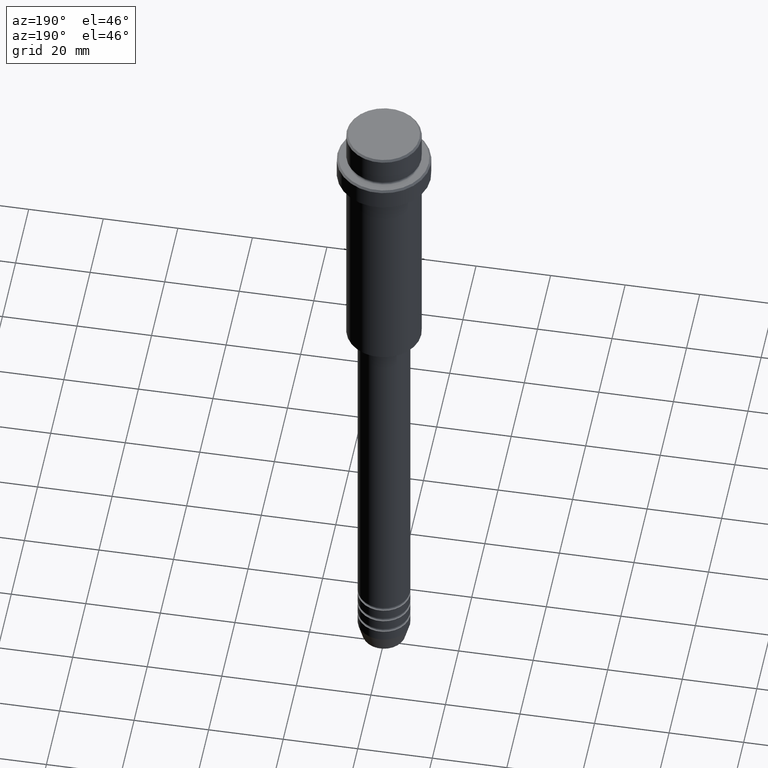
[diagram: clean part render]
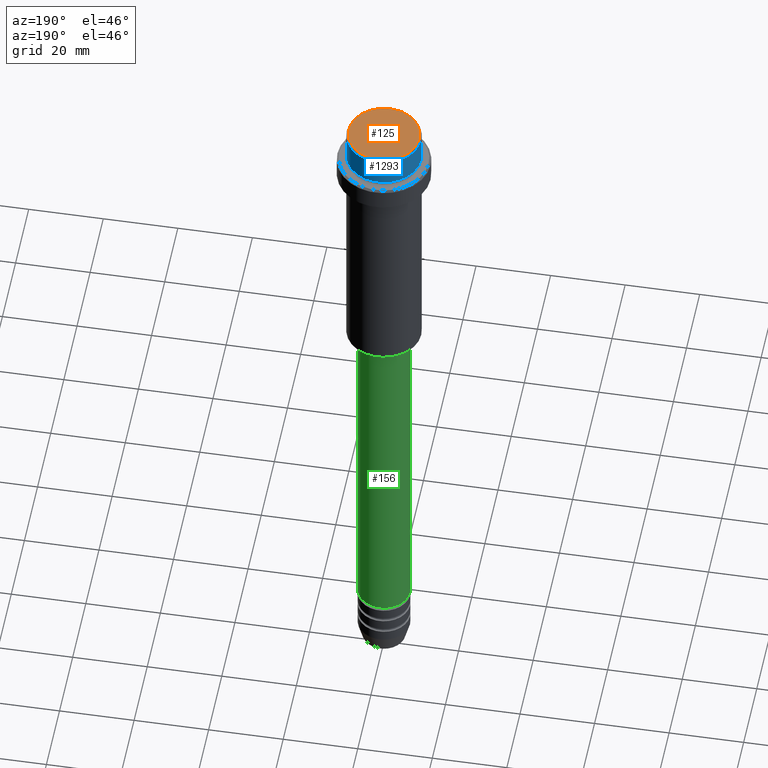
[diagram: same view with three faces highlighted in distinct colors, each labeled with its STEP entity id]
A machine part, auxiliary view with three faces highlighted in distinct colors.
Their STEP definitions:

[orange] entity #125 — the highlighted planar face has unit normal (0, -0, 1).
#81 = DIRECTION ( 'NONE',  ( 0.000000000000000000, -0.000000000000000000, 1.000000000000000000 ) ) ;
#103 = CARTESIAN_POINT ( 'NONE',  ( 9.500000000000008882, 1.194030629168669864E-15, 0.000000000000000000 ) ) ;
#125 = ADVANCED_FACE ( 'NONE', ( #1382 ), #846, .T. ) ;
#214 = VERTEX_POINT ( 'NONE', #103 ) ;
#286 = AXIS2_PLACEMENT_3D ( 'NONE', #621, #81, #747 ) ;
#300 = DIRECTION ( 'NONE',  ( 1.000000000000000000, 0.000000000000000000, 0.000000000000000000 ) ) ;
#328 = VERTEX_POINT ( 'NONE', #682 ) ;
#346 = ORIENTED_EDGE ( 'NONE', *, *, #719, .T. ) ;
#376 = CIRCLE ( 'NONE', #596, 9.500000000000008882 ) ;
#414 = CIRCLE ( 'NONE', #1282, 9.500000000000008882 ) ;
#517 = DIRECTION ( 'NONE',  ( 1.000000000000000000, 0.000000000000000000, 0.000000000000000000 ) ) ;
#534 = DIRECTION ( 'NONE',  ( -0.000000000000000000, -0.000000000000000000, 1.000000000000000000 ) ) ;
#596 = AXIS2_PLACEMENT_3D ( 'NONE', #1339, #1233, #300 ) ;
#621 = CARTESIAN_POINT ( 'NONE',  ( 0.000000000000000000, 0.000000000000000000, 0.000000000000000000 ) ) ;
#682 = CARTESIAN_POINT ( 'NONE',  ( -9.500000000000008882, 0.000000000000000000, 0.000000000000000000 ) ) ;
#719 = EDGE_CURVE ( 'NONE', #214, #328, #376, .T. ) ;
#727 = EDGE_CURVE ( 'NONE', #328, #214, #414, .T. ) ;
#733 = CARTESIAN_POINT ( 'NONE',  ( 0.000000000000000000, 0.000000000000000000, 0.000000000000000000 ) ) ;
#747 = DIRECTION ( 'NONE',  ( 1.000000000000000000, 0.000000000000000000, 0.000000000000000000 ) ) ;
#768 = EDGE_LOOP ( 'NONE', ( #1246, #346 ) ) ;
#846 = PLANE ( 'NONE',  #286 ) ;
#1233 = DIRECTION ( 'NONE',  ( -0.000000000000000000, -0.000000000000000000, 1.000000000000000000 ) ) ;
#1246 = ORIENTED_EDGE ( 'NONE', *, *, #727, .T. ) ;
#1282 = AXIS2_PLACEMENT_3D ( 'NONE', #733, #534, #517 ) ;
#1339 = CARTESIAN_POINT ( 'NONE',  ( 0.000000000000000000, 0.000000000000000000, 0.000000000000000000 ) ) ;
#1382 = FACE_OUTER_BOUND ( 'NONE', #768, .T. ) ;

[blue] entity #1293 — the highlighted cylindrical surface (partial cylindrical patch) has radius 10 mm, axis along (-0, -0, 1).
#10 = ORIENTED_EDGE ( 'NONE', *, *, #1343, .T. ) ;
#33 = DIRECTION ( 'NONE',  ( -0.000000000000000000, -0.000000000000000000, 1.000000000000000000 ) ) ;
#54 = FACE_OUTER_BOUND ( 'NONE', #1134, .T. ) ;
#69 = DIRECTION ( 'NONE',  ( -0.000000000000000000, -0.000000000000000000, 1.000000000000000000 ) ) ;
#85 = DIRECTION ( 'NONE',  ( -0.000000000000000000, -0.000000000000000000, 1.000000000000000000 ) ) ;
#159 = CIRCLE ( 'NONE', #1236, 9.999999999999998224 ) ;
#173 = CARTESIAN_POINT ( 'NONE',  ( 0.000000000000000000, 0.000000000000000000, 0.000000000000000000 ) ) ;
#334 = EDGE_CURVE ( 'NONE', #1069, #902, #455, .T. ) ;
#360 = CARTESIAN_POINT ( 'NONE',  ( -9.999999999999998224, 1.224646799147353059E-15, -7.999999999999998224 ) ) ;
#395 = CIRCLE ( 'NONE', #587, 9.999999999999998224 ) ;
#405 = CARTESIAN_POINT ( 'NONE',  ( 9.999999999999998224, 0.000000000000000000, -0.4999999999999970024 ) ) ;
#432 = AXIS2_PLACEMENT_3D ( 'NONE', #173, #69, #615 ) ;
#455 = LINE ( 'NONE', #1112, #919 ) ;
#483 = VECTOR ( 'NONE', #604, 1000.000000000000000 ) ;
#527 = DIRECTION ( 'NONE',  ( 1.000000000000000000, 0.000000000000000000, 0.000000000000000000 ) ) ;
#540 = CARTESIAN_POINT ( 'NONE',  ( 9.999999999999998224, 0.000000000000000000, -7.999999999999998224 ) ) ;
#587 = AXIS2_PLACEMENT_3D ( 'NONE', #1412, #741, #956 ) ;
#604 = DIRECTION ( 'NONE',  ( -0.000000000000000000, -0.000000000000000000, 1.000000000000000000 ) ) ;
#614 = ORIENTED_EDGE ( 'NONE', *, *, #1252, .F. ) ;
#615 = DIRECTION ( 'NONE',  ( 1.000000000000000000, 0.000000000000000000, 0.000000000000000000 ) ) ;
#645 = CARTESIAN_POINT ( 'NONE',  ( 0.000000000000000000, 0.000000000000000000, -7.999999999999998224 ) ) ;
#664 = VERTEX_POINT ( 'NONE', #540 ) ;
#741 = DIRECTION ( 'NONE',  ( 0.000000000000000000, 0.000000000000000000, -1.000000000000000000 ) ) ;
#759 = EDGE_CURVE ( 'NONE', #902, #1340, #395, .T. ) ;
#837 = LINE ( 'NONE', #1057, #483 ) ;
#902 = VERTEX_POINT ( 'NONE', #1132 ) ;
#919 = VECTOR ( 'NONE', #33, 1000.000000000000000 ) ;
#956 = DIRECTION ( 'NONE',  ( 1.000000000000000000, 0.000000000000000000, 0.000000000000000000 ) ) ;
#1057 = CARTESIAN_POINT ( 'NONE',  ( 9.999999999999998224, 0.000000000000000000, 0.000000000000000000 ) ) ;
#1069 = VERTEX_POINT ( 'NONE', #360 ) ;
#1098 = ORIENTED_EDGE ( 'NONE', *, *, #759, .T. ) ;
#1112 = CARTESIAN_POINT ( 'NONE',  ( -9.999999999999998224, 1.224646799147353059E-15, 0.000000000000000000 ) ) ;
#1132 = CARTESIAN_POINT ( 'NONE',  ( -9.999999999999998224, 1.224646799147353059E-15, -0.4999999999999970024 ) ) ;
#1134 = EDGE_LOOP ( 'NONE', ( #10, #1362, #1098, #614 ) ) ;
#1157 = CYLINDRICAL_SURFACE ( 'NONE', #432, 9.999999999999998224 ) ;
#1236 = AXIS2_PLACEMENT_3D ( 'NONE', #645, #85, #527 ) ;
#1252 = EDGE_CURVE ( 'NONE', #664, #1340, #837, .T. ) ;
#1293 = ADVANCED_FACE ( 'NONE', ( #54 ), #1157, .T. ) ;
#1340 = VERTEX_POINT ( 'NONE', #405 ) ;
#1343 = EDGE_CURVE ( 'NONE', #664, #1069, #159, .T. ) ;
#1362 = ORIENTED_EDGE ( 'NONE', *, *, #334, .T. ) ;
#1412 = CARTESIAN_POINT ( 'NONE',  ( 0.000000000000000000, 0.000000000000000000, -0.4999999999999970024 ) ) ;

[green] entity #156 — the highlighted cylindrical surface (edge-blend (fillet) strip) has radius 7 mm, axis along (-0, -0, 1).
#11 = ORIENTED_EDGE ( 'NONE', *, *, #1302, .F. ) ;
#156 = ADVANCED_FACE ( 'NONE', ( #838 ), #712, .T. ) ;
#175 = DIRECTION ( 'NONE',  ( 1.000000000000000000, 0.000000000000000000, 0.000000000000000000 ) ) ;
#185 = CARTESIAN_POINT ( 'NONE',  ( 0.000000000000000000, 0.000000000000000000, 0.000000000000000000 ) ) ;
#229 = EDGE_LOOP ( 'NONE', ( #504, #401, #576, #11 ) ) ;
#262 = CARTESIAN_POINT ( 'NONE',  ( -7.000000000000000000, 8.572527594031473190E-16, -172.9999999999999147 ) ) ;
#288 = CARTESIAN_POINT ( 'NONE',  ( 0.000000000000000000, 0.000000000000000000, -172.9999999999999147 ) ) ;
#341 = DIRECTION ( 'NONE',  ( 1.000000000000000000, 0.000000000000000000, 0.000000000000000000 ) ) ;
#342 = VERTEX_POINT ( 'NONE', #806 ) ;
#351 = CARTESIAN_POINT ( 'NONE',  ( -7.000000000000000000, 8.572527594031473190E-16, 0.000000000000000000 ) ) ;
#361 = EDGE_CURVE ( 'NONE', #773, #342, #958, .T. ) ;
#378 = VERTEX_POINT ( 'NONE', #669 ) ;
#393 = DIRECTION ( 'NONE',  ( -0.000000000000000000, -0.000000000000000000, 1.000000000000000000 ) ) ;
#401 = ORIENTED_EDGE ( 'NONE', *, *, #920, .T. ) ;
#470 = DIRECTION ( 'NONE',  ( -0.000000000000000000, -0.000000000000000000, 1.000000000000000000 ) ) ;
#499 = VECTOR ( 'NONE', #393, 1000.000000000000000 ) ;
#501 = LINE ( 'NONE', #1380, #499 ) ;
#504 = ORIENTED_EDGE ( 'NONE', *, *, #1307, .T. ) ;
#543 = CARTESIAN_POINT ( 'NONE',  ( 7.000000000000000000, 0.000000000000000000, -76.00000000000001421 ) ) ;
#557 = VERTEX_POINT ( 'NONE', #262 ) ;
#567 = CARTESIAN_POINT ( 'NONE',  ( 0.000000000000000000, 0.000000000000000000, -76.00000000000001421 ) ) ;
#576 = ORIENTED_EDGE ( 'NONE', *, *, #361, .F. ) ;
#590 = DIRECTION ( 'NONE',  ( -0.000000000000000000, -0.000000000000000000, 1.000000000000000000 ) ) ;
#601 = VECTOR ( 'NONE', #678, 1000.000000000000000 ) ;
#602 = AXIS2_PLACEMENT_3D ( 'NONE', #288, #590, #1354 ) ;
#654 = AXIS2_PLACEMENT_3D ( 'NONE', #567, #470, #341 ) ;
#669 = CARTESIAN_POINT ( 'NONE',  ( 7.000000000000000000, 0.000000000000000000, -172.9999999999999147 ) ) ;
#678 = DIRECTION ( 'NONE',  ( -0.000000000000000000, -0.000000000000000000, 1.000000000000000000 ) ) ;
#712 = CYLINDRICAL_SURFACE ( 'NONE', #1364, 7.000000000000000000 ) ;
#773 = VERTEX_POINT ( 'NONE', #543 ) ;
#806 = CARTESIAN_POINT ( 'NONE',  ( -7.000000000000000000, 8.572527594031473190E-16, -76.00000000000001421 ) ) ;
#838 = FACE_OUTER_BOUND ( 'NONE', #229, .T. ) ;
#920 = EDGE_CURVE ( 'NONE', #557, #342, #1329, .T. ) ;
#958 = CIRCLE ( 'NONE', #654, 7.000000000000000000 ) ;
#1264 = DIRECTION ( 'NONE',  ( -0.000000000000000000, -0.000000000000000000, 1.000000000000000000 ) ) ;
#1276 = CIRCLE ( 'NONE', #602, 7.000000000000000000 ) ;
#1302 = EDGE_CURVE ( 'NONE', #378, #773, #501, .T. ) ;
#1307 = EDGE_CURVE ( 'NONE', #378, #557, #1276, .T. ) ;
#1329 = LINE ( 'NONE', #351, #601 ) ;
#1354 = DIRECTION ( 'NONE',  ( 1.000000000000000000, 0.000000000000000000, 0.000000000000000000 ) ) ;
#1364 = AXIS2_PLACEMENT_3D ( 'NONE', #185, #1264, #175 ) ;
#1380 = CARTESIAN_POINT ( 'NONE',  ( 7.000000000000000000, 0.000000000000000000, 0.000000000000000000 ) ) ;